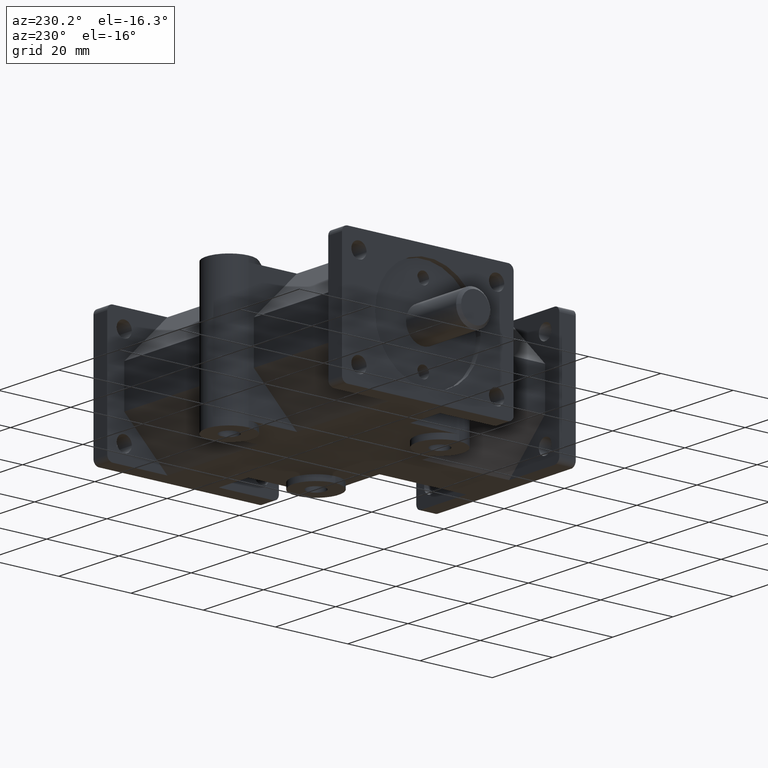
[diagram: clean part render]
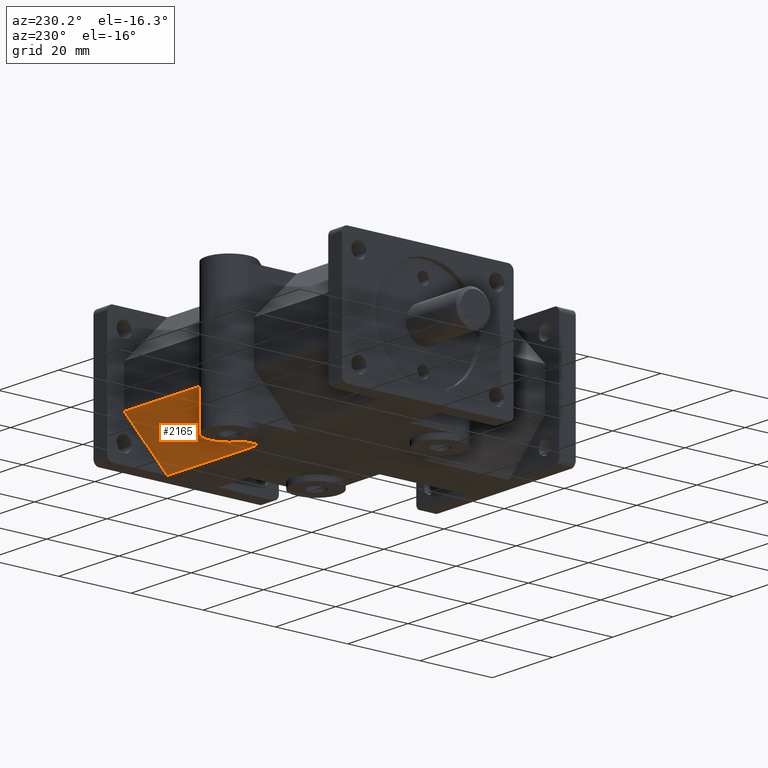
[diagram: same view with one face highlighted and labeled with its STEP entity id]
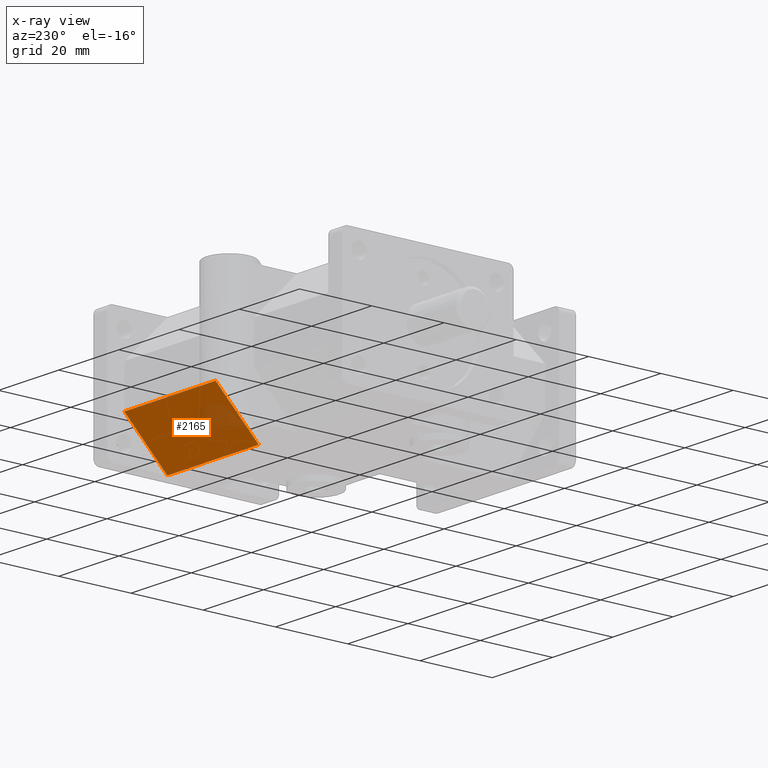
[diagram: x-ray of the same camera — body ghosted, the highlighted face saturated]
A machine part, auxiliary view. The second image highlights one B-rep face of the part: STEP entity #2165.
The next image is the same camera in x-ray: the body ghosted, the highlighted face saturated — about 15% of this face is hidden behind the body in this view.
In plain terms, the highlighted planar face has unit normal (0, 0.7071, -0.7071).
Its self-contained STEP definition (entity closure, byte-faithful):
#118=PLANE('',#2397);
#227=FACE_OUTER_BOUND('',#386,.T.);
#386=EDGE_LOOP('',(#1902,#1903,#1904,#1905));
#572=LINE('',#3314,#767);
#610=LINE('',#3399,#805);
#697=LINE('',#3644,#892);
#698=LINE('',#3645,#893);
#767=VECTOR('',#2662,1.);
#805=VECTOR('',#2726,1.);
#892=VECTOR('',#2995,1.);
#893=VECTOR('',#2996,1.);
#1000=VERTEX_POINT('',#3311);
#1001=VERTEX_POINT('',#3313);
#1035=VERTEX_POINT('',#3397);
#1102=VERTEX_POINT('',#3643);
#1218=EDGE_CURVE('',#1001,#1000,#572,.F.);
#1266=EDGE_CURVE('',#1000,#1035,#610,.T.);
#1387=EDGE_CURVE('',#1035,#1102,#697,.F.);
#1388=EDGE_CURVE('',#1102,#1001,#698,.T.);
#1902=ORIENTED_EDGE('',*,*,#1218,.T.);
#1903=ORIENTED_EDGE('',*,*,#1266,.T.);
#1904=ORIENTED_EDGE('',*,*,#1387,.T.);
#1905=ORIENTED_EDGE('',*,*,#1388,.T.);
#2165=ADVANCED_FACE('',(#227),#118,.T.);
#2397=AXIS2_PLACEMENT_3D('',#3642,#2993,#2994);
#2662=DIRECTION('',(0.,0.707106781186548,0.707106781186547));
#2726=DIRECTION('',(-1.,0.,0.));
#2993=DIRECTION('center_axis',(0.,0.707106781186547,-0.707106781186548));
#2994=DIRECTION('ref_axis',(1.,0.,0.));
#2995=DIRECTION('',(0.,-0.707106781186548,-0.707106781186547));
#2996=DIRECTION('',(1.,0.,0.));
#3311=CARTESIAN_POINT('',(1.445,2.4675,-0.69));
#3313=CARTESIAN_POINT('',(1.445,2.9375,-0.22));
#3314=CARTESIAN_POINT('',(1.445,2.875,-0.2825));
#3397=CARTESIAN_POINT('',(0.25,2.4675,-0.69));
#3399=CARTESIAN_POINT('',(0.125,2.4675,-0.69));
#3642=CARTESIAN_POINT('Origin',(0.125,2.7025,-0.455));
#3643=CARTESIAN_POINT('',(0.25,2.9375,-0.22));
#3644=CARTESIAN_POINT('',(0.25,2.89,-0.2675));
#3645=CARTESIAN_POINT('',(0.125,2.9375,-0.22));